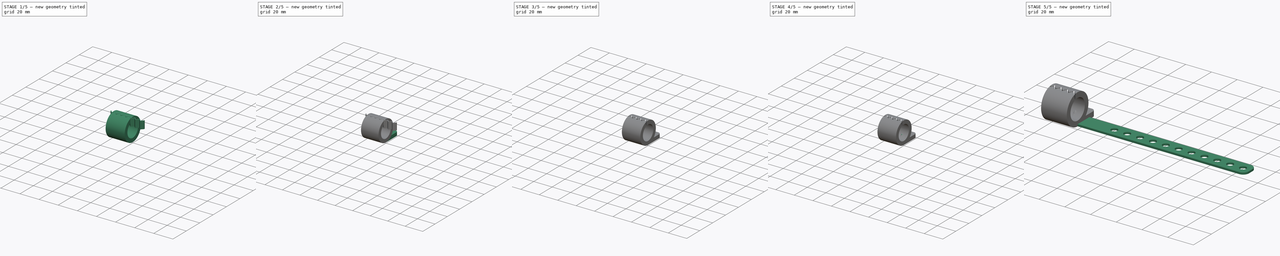
[diagram: build sequence overview — one tinted view per stage of 5, left to right]
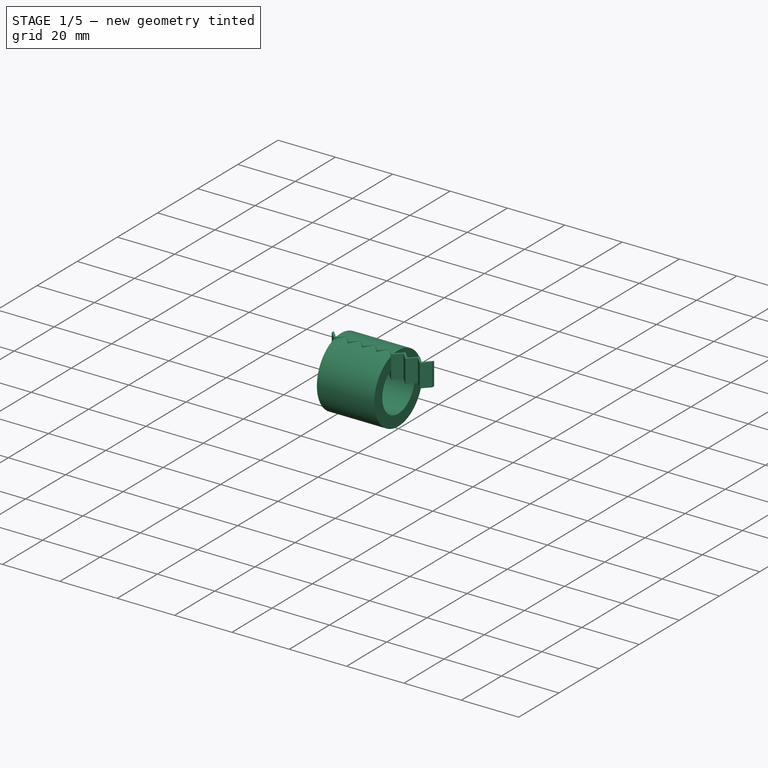
[diagram: stage 1 of 5 — iso view after this stage's code; geometry added in this stage tinted green]
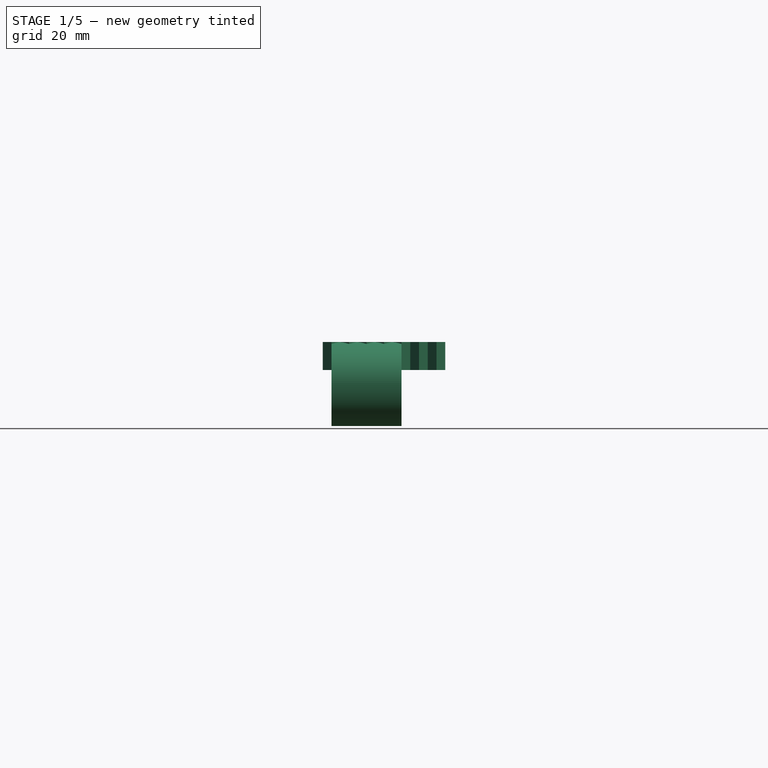
[diagram: stage 1 of 5 — front view after this stage's code; geometry added in this stage tinted green]
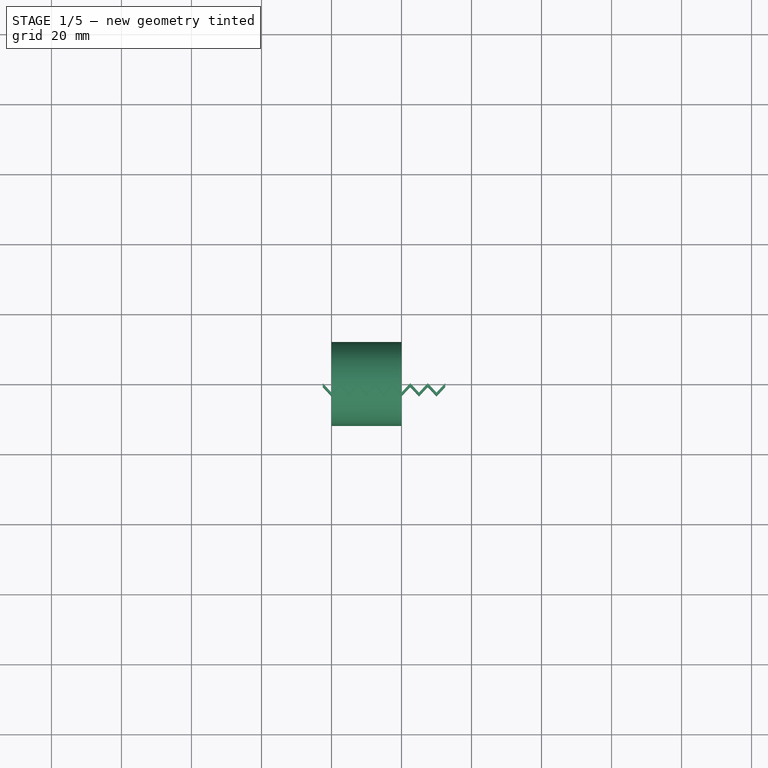
[diagram: stage 1 of 5 — top view after this stage's code; geometry added in this stage tinted green]
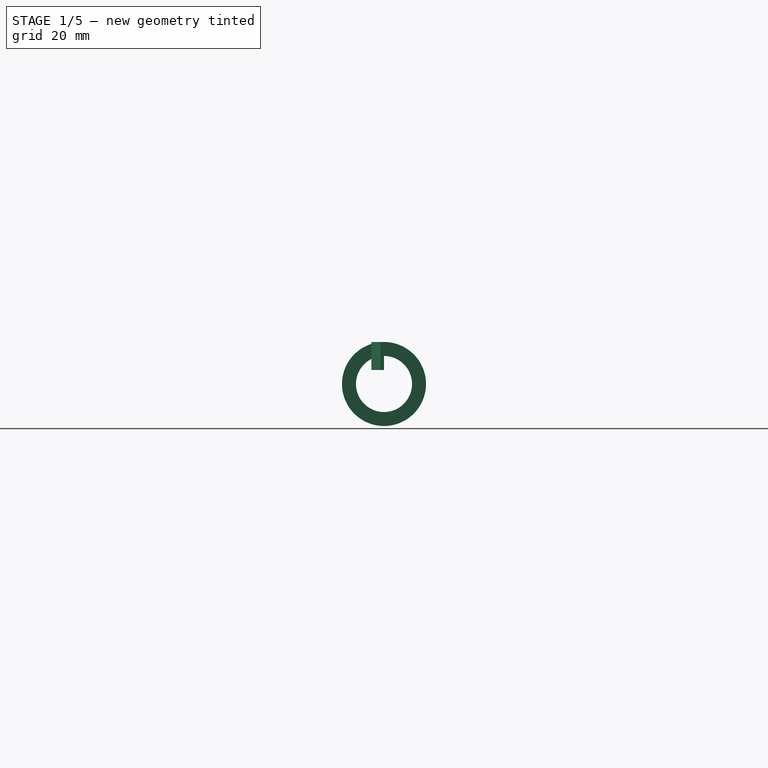
[diagram: stage 1 of 5 — right view after this stage's code; geometry added in this stage tinted green]
FCSTD DOCUMENT  (FreeCAD 0.21R33771 (Git))
Label: strap
License: FreeArt
LicenseURL: http://artlibre.org/licence/lal
objects: Part::FeaturePython×4, Part::Cylinder×3, Part::Cut×3, PartDesign::Body×3, App::Part×3, Part::MultiFuse×3, Part::Box×2, Part::Fillet×2, Sketcher::SketchObject×2, Part::Feature×1, Part::Revolution×1, PartDesign::FeatureBase×1, Spreadsheet::Sheet×1, PartDesign::Pad×1
note: 26 computed .brp shape members not serialized (recipe doc carries the construction recipe); baked Part::Feature solids carry a one-line shape summary decoded from their .brp

FEATURE [Part::Box] Box  label="bolt_attachment"
  AttacherType = Attacher::AttachEngine3D
  Height = 4
  Length = 20
  Width = 20
  expr: Height = <<p>>.attachment_height
  expr: Length = <<p>>.attachment_length
  expr: Width = <<p>>.attachment_width
FEATURE [App::Part] Part002  label="long wire strap part"
  Group = -> [Array,Cylinder003,Body001,Cut002,Fillet001,Box001,Array001,Fusion001]
  Origin = -> Origin003
FEATURE [Part::FeaturePython] Tube  label="tube001"  # WARN: FeaturePython — macro-defined, semantics opaque (R4)
  AttacherType = Attacher::AttachEngine3D
  Height = 20
  InnerRadius = 8
  OuterRadius = 12
  Placement = pos=(0,0,12) rot=(0,1,0;1.5708rad)
  expr: .Placement.Base.z = OuterRadius
  expr: Height = <<bolt_attachment>>.Length
  expr: InnerRadius = <<p>>.wire_hole_r
  expr: OuterRadius = <<p>>.wire_hole_r + <<p>>.attachment_height
FEATURE [Sketcher::SketchObject] Sketch001
  FullyConstrained = false
  MapMode = 5
  Support = -> [XY_Plane005]
  sketch-geometry (6):
    g0: LineSegment StartX=-2.5 StartY=0 StartZ=0 EndX=-6.644e-13 EndY=-2.614 EndZ=0
    g1: LineSegment StartX=-6.644e-13 StartY=-2.614 StartZ=0 EndX=2.5 EndY=0 EndZ=0
    g2: LineSegment StartX=-2.5 StartY=0 StartZ=0 EndX=-2.5 EndY=-1 EndZ=0
    g3: LineSegment StartX=-2.5 StartY=-1 StartZ=0 EndX=-6.644e-13 EndY=-3.614 EndZ=0
    g4: LineSegment StartX=-6.644e-13 StartY=-3.614 StartZ=0 EndX=2.5 EndY=-1 EndZ=0
    g5: LineSegment StartX=2.5 StartY=0 StartZ=0 EndX=2.5 EndY=-1 EndZ=0
  constraints (16):
    c: Coincident(g0,g1)
    c: PointOnObject(g1,g-1)
    c: Coincident(g0,g2)
    c: Coincident(g2,g3)
    c: Coincident(g3,g4)
    c: Parallel(g0,g3)
    c: Parallel(g1,g4)
    c: Distance(g3,g0) = 1
    c: DistanceX(g3,g0) = 0
    c: Equal(g0,g1)
    c: Coincident(g5,g1)
    c: Coincident(g5,g4)
    c: Symmetric(g1,g0,g-2)
    c: DistanceX(g0,g1) = 5
    c: Vertical(g2)
    c: Vertical(g5)
FEATURE [PartDesign::Pad] Pad
  Direction = (0,0,1)
  Length = 8
  Length2 = 100
  Midplane = true
  Profile = -> Sketch001
  Type = 0
  expr: Length = <<p>>.wire_hole_r
FEATURE [PartDesign::Body] Body002  label="gap cut body"
  Group = -> [Sketch001,Pad]
  Origin = -> Origin005
  Placement = pos=(0,2,20) rot=(0,0,1;0rad)
  Tip = -> Pad
  expr: .Placement.Base.z = <<p>>.wire_hole_r * 2 + <<p>>.attachment_height
FEATURE [Part::FeaturePython] Array002  label="Cut Pad Array"  # Draft array (typed FeaturePython)
  AlwaysSyncPlacement = false
  Angle = 360
  ArrayType = 0
  Axis = (0,0,1)
  Base = -> Pad
  Center = (0,0,0)
  Count = 7
  ExpandArray = false
  Fuse = false
  IntervalAxis = (0,0,0)
  IntervalX = (5,0,0)
  IntervalY = (0,100,0)
  IntervalZ = (0,0,100)
  NumberCircles = 3
  NumberPolar = 5
  NumberX = 7
  NumberY = 1
  NumberZ = 1
  Placement = pos=(0,0,20) rot=(0,0,1;0rad)
  PlacementList = 7 placements: arithmetic series from (0,0,0) step (5,0,0) to (30,0,0)
  RadialDistance = 50
  ScaleList = (7) [(1,1,1),(1,1,1),(1,1,1),(1,1,1),(1,1,1),(1,1,1),(1,1,1)]
  Symmetry = 1
  TangentialDistance = 25
  expr: .Placement.Base.z = <<p>>.wire_hole_r * 2 + <<p>>.attachment_height
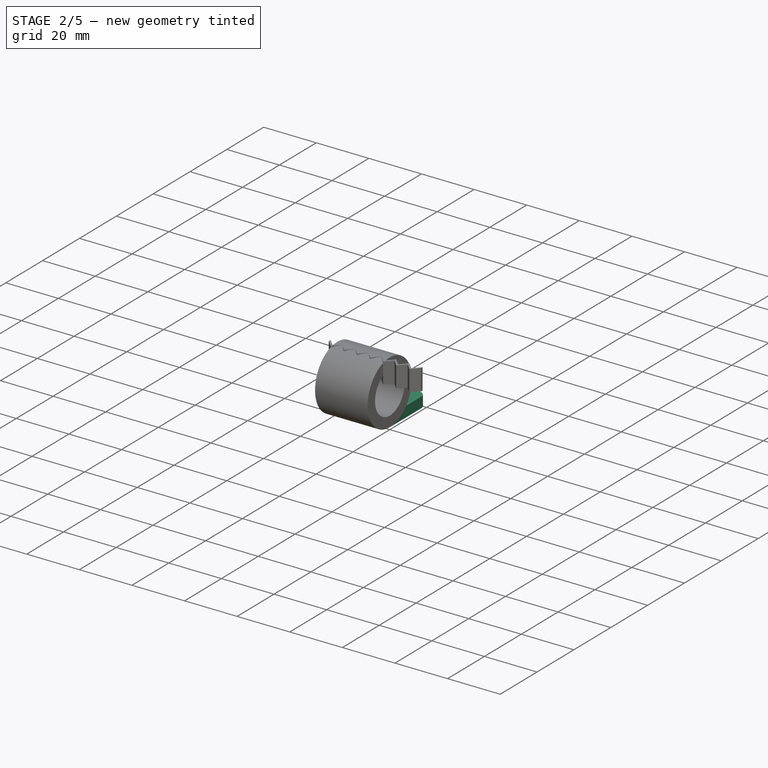
[diagram: stage 2 of 5 — iso view after this stage's code; geometry added in this stage tinted green]
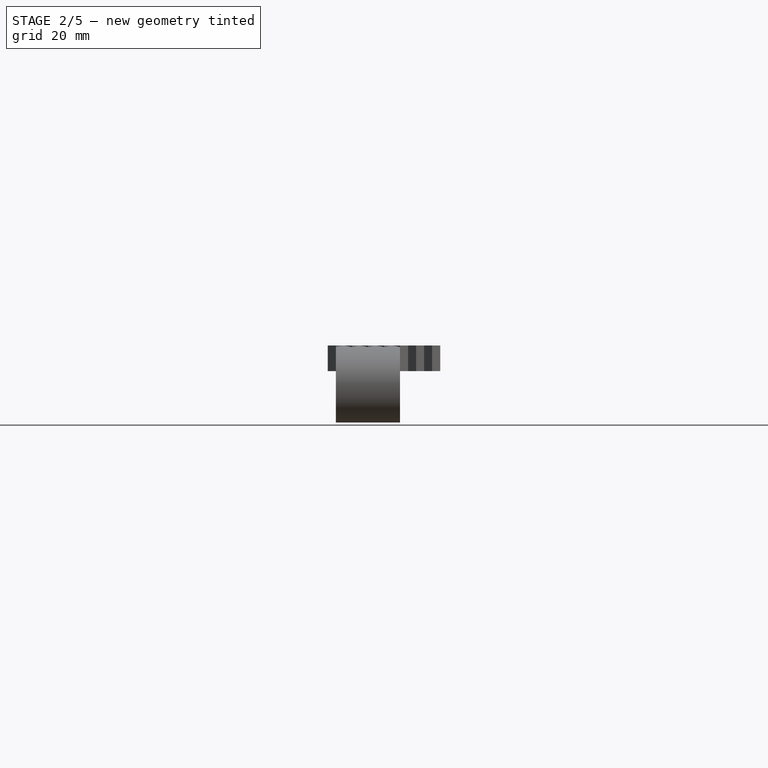
[diagram: stage 2 of 5 — front view after this stage's code; geometry added in this stage tinted green]
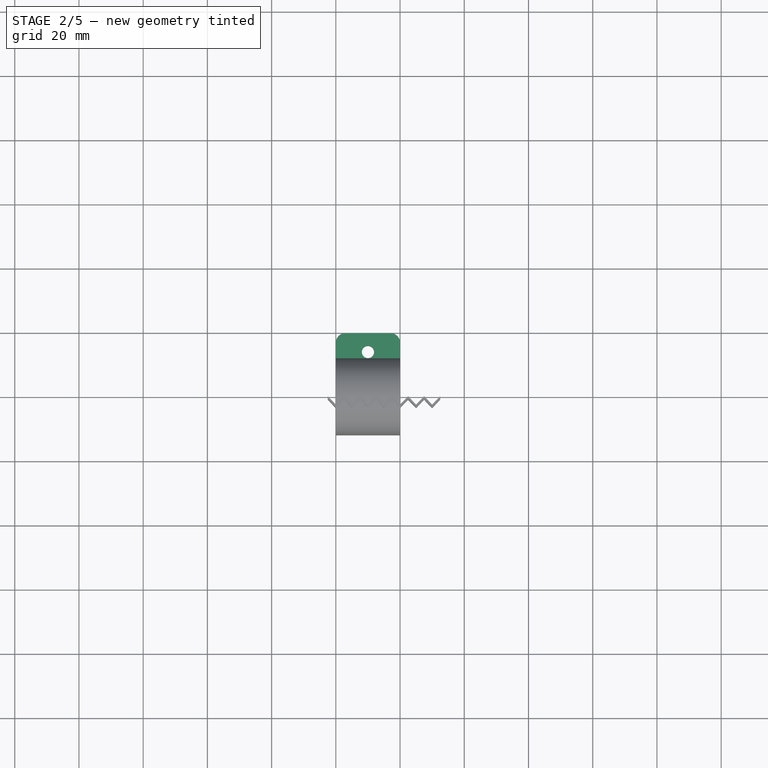
[diagram: stage 2 of 5 — top view after this stage's code; geometry added in this stage tinted green]
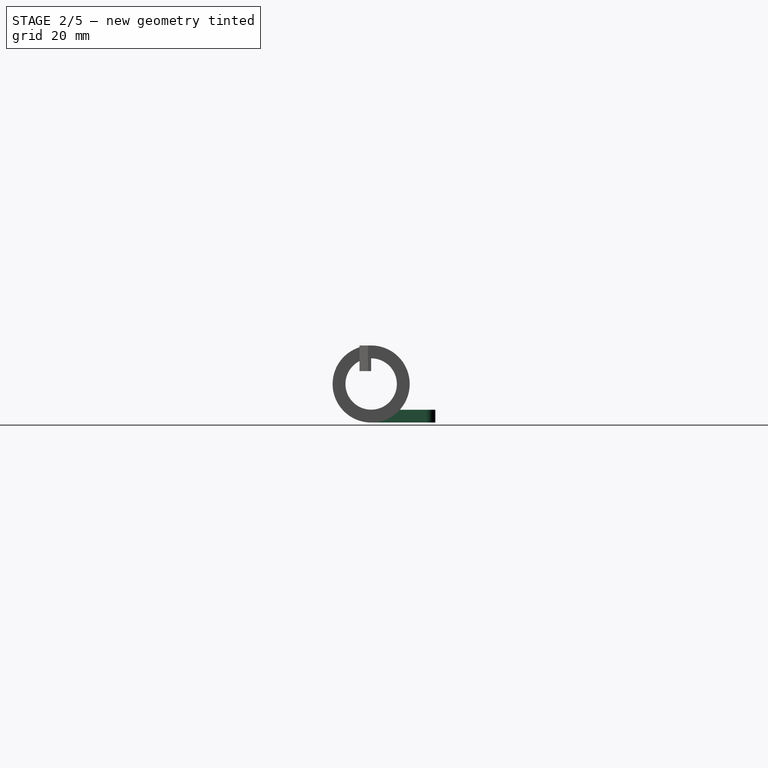
[diagram: stage 2 of 5 — right view after this stage's code; geometry added in this stage tinted green]
FEATURE [Part::Cylinder] Cylinder  label="bolt_hole"
  Angle = 360
  AttacherType = Attacher::AttachEngine3D
  FirstAngle = 0
  Height = 10
  Placement = pos=(10,14.1,0) rot=(0,0,1;0rad)
  Radius = 1.9
  SecondAngle = 0
  expr: .Placement.Base.x = <<bolt_attachment>>.Length / 2
  expr: .Placement.Base.y = <<bolt_attachment>>.Width - Radius - 4 mm
  expr: Radius = <<p>>.bolt_hole_r
FEATURE [Part::Fillet] Fillet  label="bolt attachment fillet"
  Base = -> Box
  Edges = 2 edges r=3: [Edge3,Edge7]
FEATURE [Part::Cut] Cut  label="attachment"
  Base = -> Fillet
  Tool = -> Cylinder
FEATURE [Part::MultiFuse] Fusion  label="bolt wire cilinder"
  Shapes = -> [Cut,Tube]
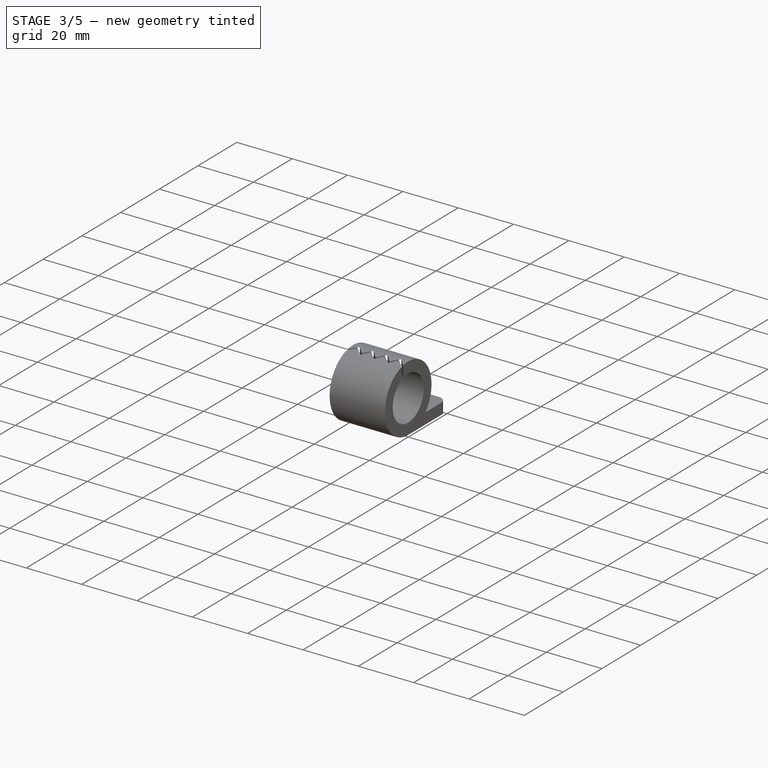
[diagram: stage 3 of 5 — iso view after this stage's code; geometry added in this stage tinted green]
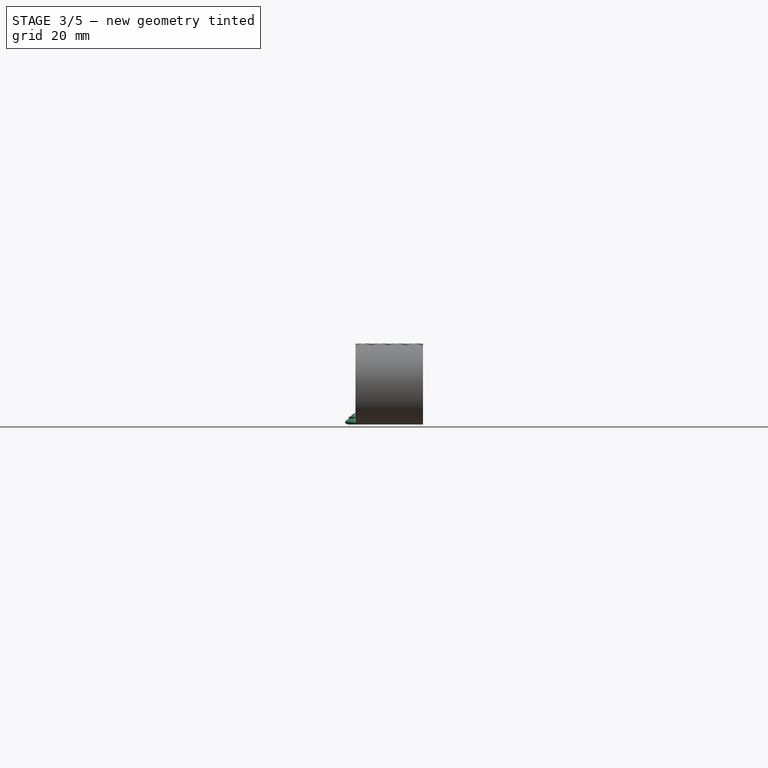
[diagram: stage 3 of 5 — front view after this stage's code; geometry added in this stage tinted green]
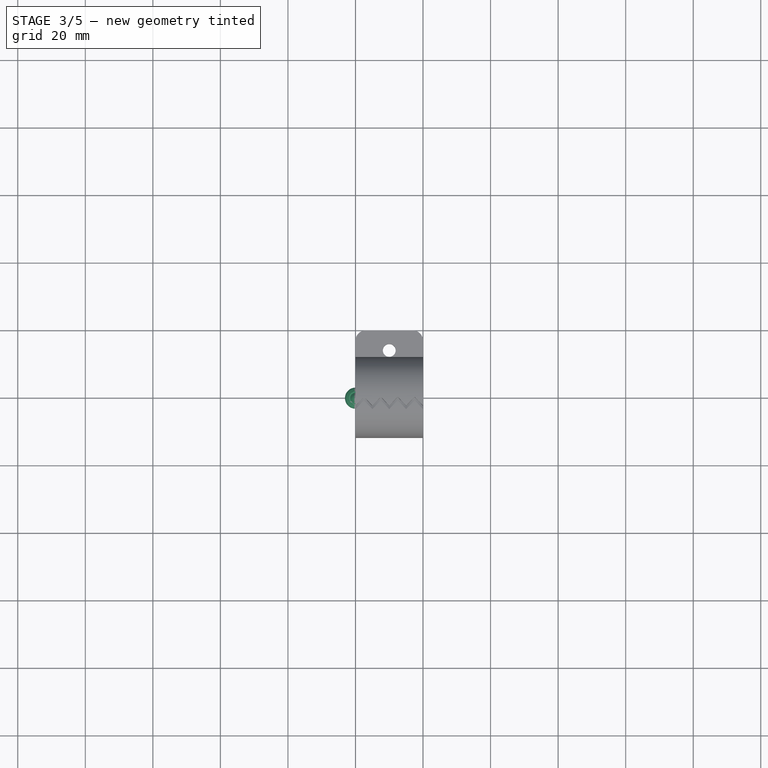
[diagram: stage 3 of 5 — top view after this stage's code; geometry added in this stage tinted green]
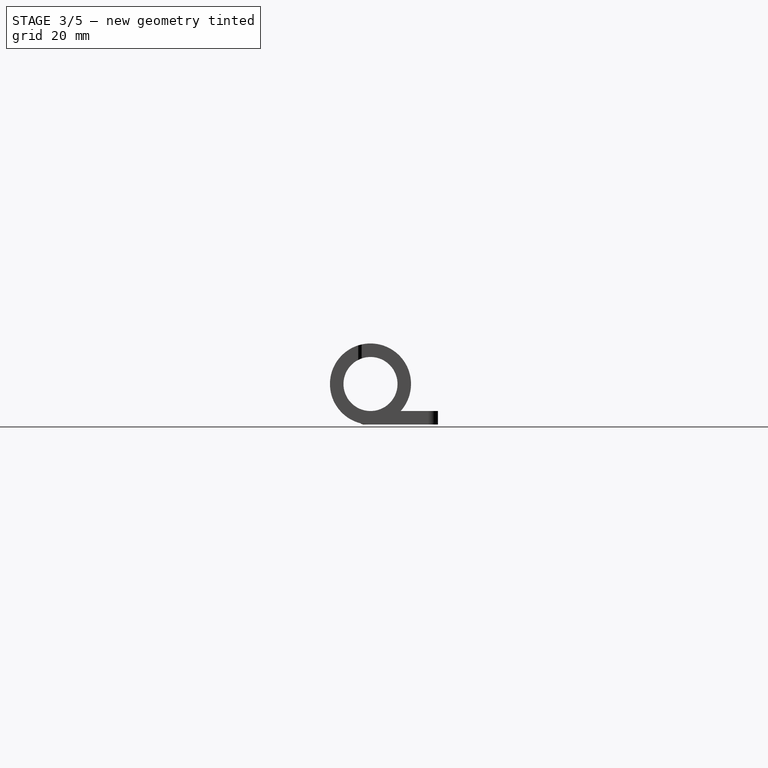
[diagram: stage 3 of 5 — right view after this stage's code; geometry added in this stage tinted green]
FEATURE [PartDesign::Body] Body  label="button body"
  Origin = -> Origin001
FEATURE [Sketcher::SketchObject] Sketch
  FullyConstrained = false
  MapMode = 5
  Placement = pos=(0,0,0) rot=(1,0,0;1.5708rad)
  Support = -> [XZ_Plane001]
  sketch-geometry (20):
    g0: LineSegment StartX=-2.2 StartY=0 StartZ=0 EndX=0 EndY=0 EndZ=0
    g1: LineSegment StartX=0 StartY=0 StartZ=0 EndX=0 EndY=3.51345 EndZ=0
    g2-g6: Circle x5 (B-spline internal-alignment scaffolding for g7; pole/knot coordinates omitted)
    g7: BSplineCurve PolesCount=5 KnotsCount=3 Degree=3 IsPeriodic=0
    g8: GeomPoint X=0 Y=3.51345 Z=0
    g9: GeomPoint X=-1.06907 Y=2.83212 Z=0
    g10: GeomPoint X=-2.06953 Y=1.67445 Z=0
    g11-g15: Circle x5 (B-spline internal-alignment scaffolding for g16; pole/knot coordinates omitted)
    g16: BSplineCurve PolesCount=5 KnotsCount=3 Degree=3 IsPeriodic=0
    g17: GeomPoint X=-2.06953 Y=1.67445 Z=0
    g18: GeomPoint X=-3.07188 Y=0.787181 Z=0
    g19: GeomPoint X=-2.2 Y=0 Z=0
  constraints (18):
    c: Coincident(g1,g0)
    c: Vertical(g1)
    c: Coincident(g1,g-1)
    c: Weight(g2) = 1
    c: Equal(g2, g3-g6) x4
    c: InternalAlignment(g2-g6 -> g7) x5
    c: InternalAlignment(g8,g7)
    c: InternalAlignment(g9,g7)
    c: InternalAlignment(g10,g7)
    c: Coincident(g1,g7)
    c: Coincident(g16,g7)
    c: Weight(g11) = 1
    c: Equal(g11, g12-g15) x4
    c: InternalAlignment(g11-g15 -> g16) x5
    c: InternalAlignment(g17,g16)
    c: InternalAlignment(g18,g16)
    c: InternalAlignment(g19,g16)
    c: Coincident(g19,g0)
FEATURE [Part::Feature] hole_strap001
  shape: bbox 198 x 12 x 4.5 mm, 7638 faces, 0 solids (baked)
FEATURE [Part::Revolution] Revolve  label="button revolve"
  Angle = 360
  Axis = (0,0,1)
  Base = (0,0,0)
  FaceMakerClass = Part::FaceMakerBullseye
  Solid = true
  Source = -> Sketch
  Symmetric = false
FEATURE [PartDesign::FeatureBase] Clone
  BaseFeature = -> Revolve
FEATURE [Spreadsheet::Sheet] Spreadsheet  label="p"
  cells = A1='strap_length; B1(strap_length)=150; A2='strap_width; B2(strap_width)=13; A3='strap_height; B3(strap_height)=1.5; A4='button_dist; B4(button_dist)=10; A5='button_hole_r; B5(button_hole_r)=2.5; A7='wire_hole_r; B7(wire_hole_r)=8; A8='attachment_length; B8(attachment_length)=20; A9='attachment_width; B9(attachment_width)=20; A10='attachment_height; B10(attachment_height)=4; A11='bolt_hole_r; B11(bolt_hole_r)=1.9
FEATURE [Part::Cylinder] Cylinder004  label="Cylinder"
  Angle = 360
  AttacherType = Attacher::AttachEngine3D
  FirstAngle = 0
  Height = 2.3
  Radius = 2
  SecondAngle = 0
  expr: Height = <<p>>.strap_height + 0.8
FEATURE [Part::Cut] Cut003  label="bolt wire cylinder cut"
  Base = -> Fusion
  Tool = -> Array002
FEATURE [App::Part] Part001  label="bolt wire cylinder part"
  Group = -> [Cut003]
  Origin = -> Origin002
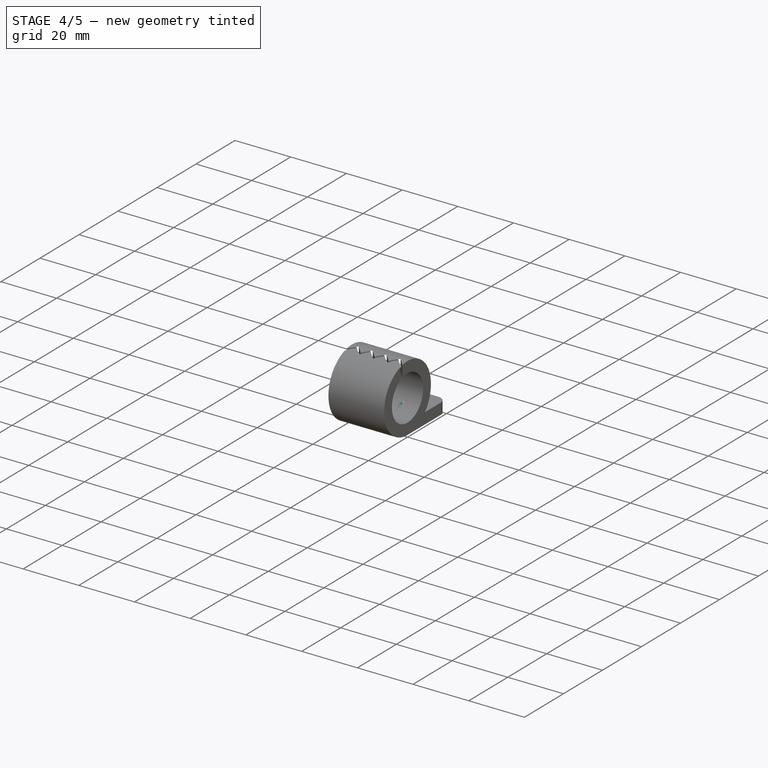
[diagram: stage 4 of 5 — iso view after this stage's code; geometry added in this stage tinted green]
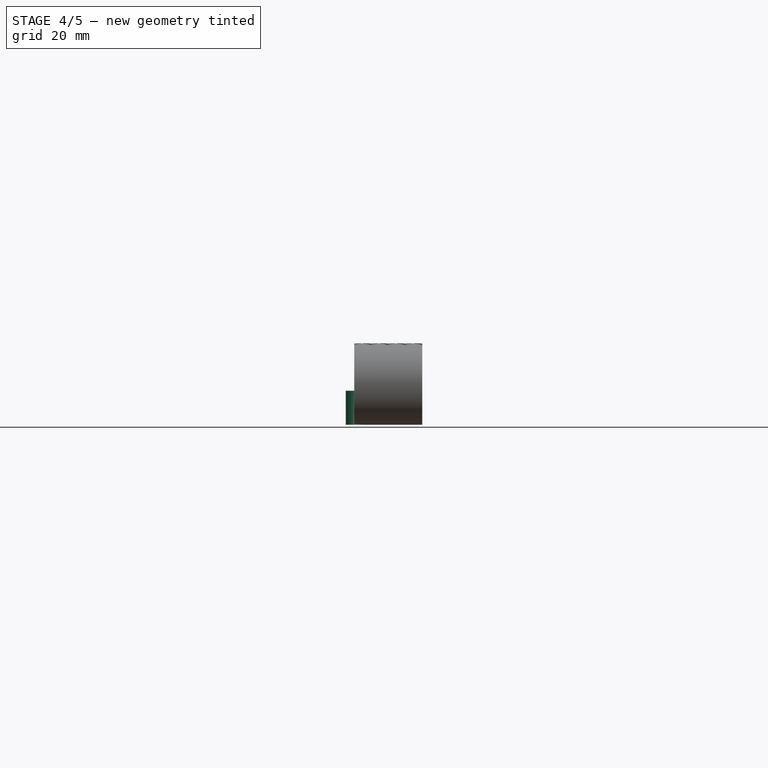
[diagram: stage 4 of 5 — front view after this stage's code; geometry added in this stage tinted green]
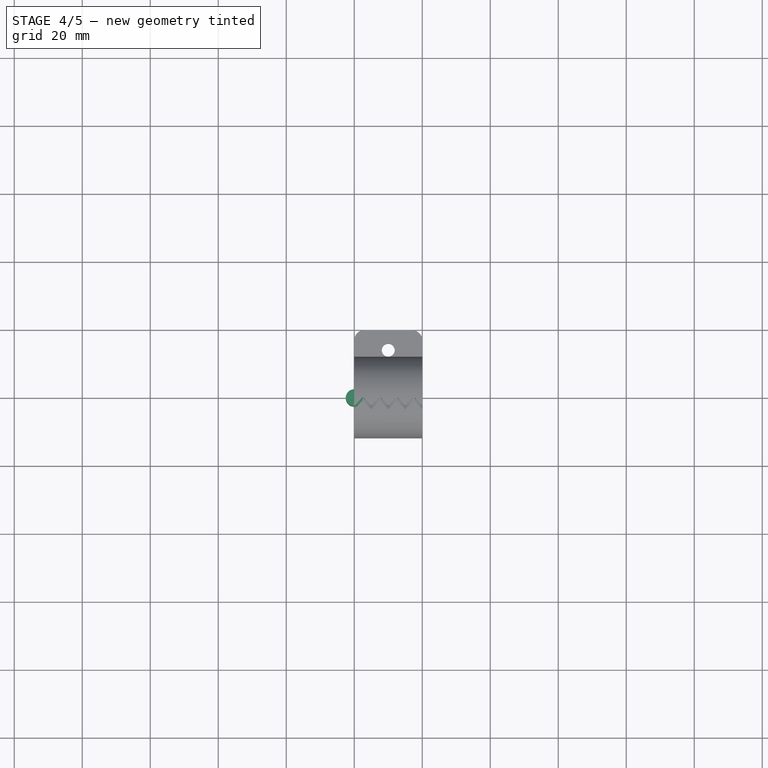
[diagram: stage 4 of 5 — top view after this stage's code; geometry added in this stage tinted green]
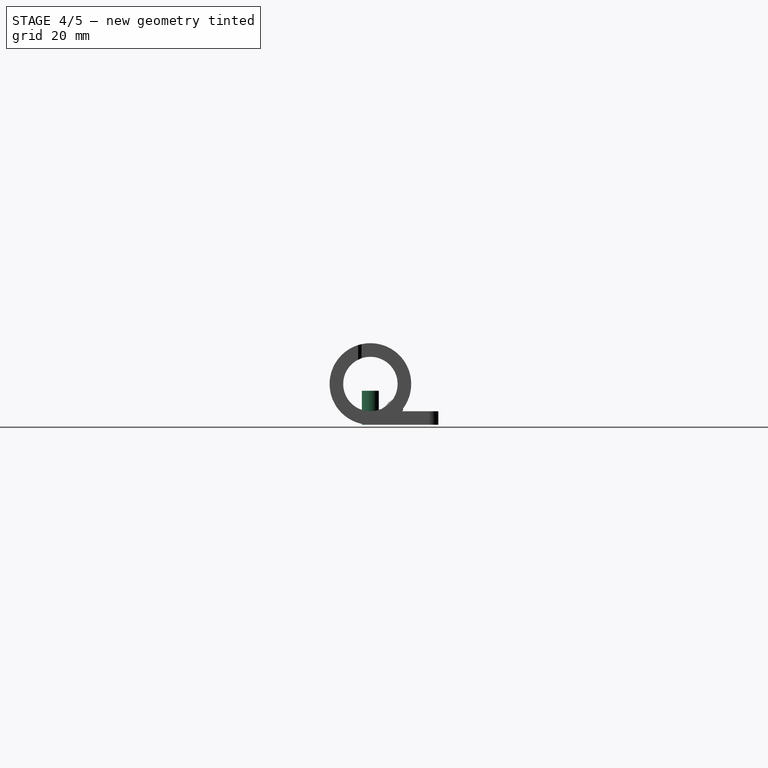
[diagram: stage 4 of 5 — right view after this stage's code; geometry added in this stage tinted green]
FEATURE [App::Part] Part  label="button part"
  Group = -> [Body,Sketch,Revolve]
  Origin = -> Origin
FEATURE [Part::Box] Box001  label="long_cube"
  AttacherType = Attacher::AttachEngine3D
  Height = 1.5
  Length = 150
  Width = 13
  expr: Height = <<p>>.strap_height
  expr: Length = <<p>>.strap_length
  expr: Width = <<p>>.strap_width
FEATURE [Part::Cylinder] Cylinder003  label="button hole"
  Angle = 360
  AttacherType = Attacher::AttachEngine3D
  FirstAngle = 0
  Height = 10
  Radius = 2.5
  SecondAngle = 0
  expr: Radius = <<p>>.button_hole_r
FEATURE [Part::MultiFuse] Fusion002  label="button fusion"
  Shapes = -> [Cylinder004,Body001]
FEATURE [Part::FeaturePython] Array  label="button_array"  # Draft array (typed FeaturePython)
  Angle = 360
  ArrayType = 0
  Axis = (0,0,1)
  Base = -> Fusion002
  Center = (0,0,0)
  Count = 2
  Fuse = false
  IntervalAxis = (0,0,0)
  IntervalX = (10,0,0)
  IntervalY = (0,1,0)
  IntervalZ = (0,0,1)
  NumberPolar = 1
  NumberX = 2
  NumberY = 1
  NumberZ = 1
  Placement = pos=(4,6.5,1.5) rot=(0,0,1;0rad)
  expr: .IntervalX.x = <<p>>.button_dist
  expr: .Placement.Base.y = <<long_cube>>.Width / 2
  expr: .Placement.Base.z = <<long_cube>>.Height
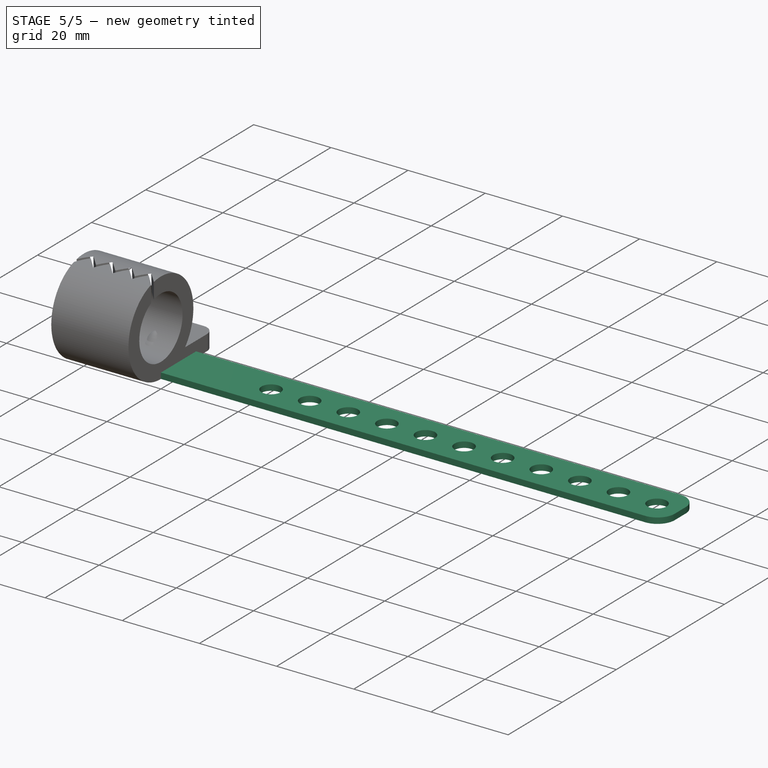
[diagram: stage 5 of 5 — iso view after this stage's code; geometry added in this stage tinted green]
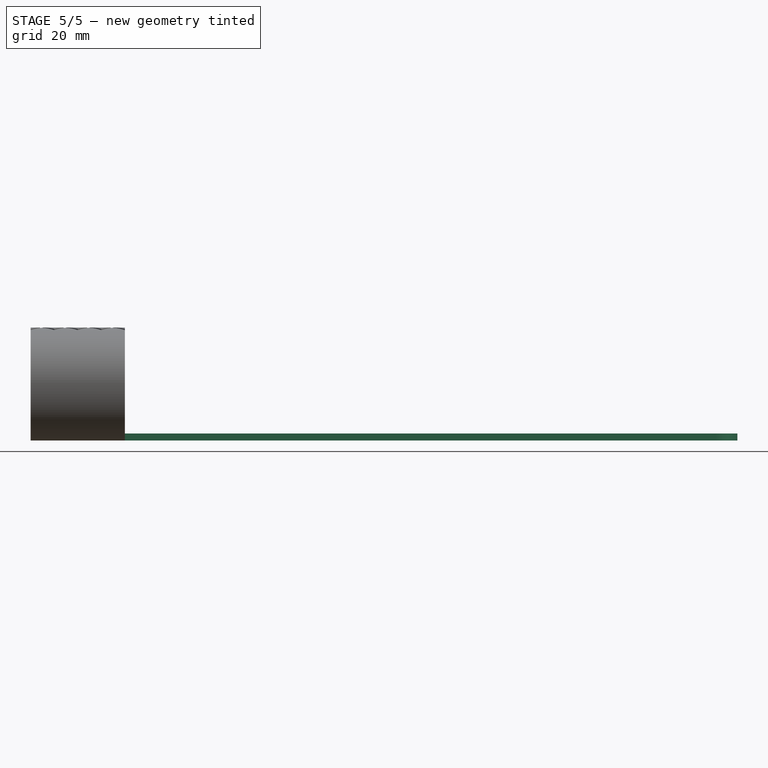
[diagram: stage 5 of 5 — front view after this stage's code; geometry added in this stage tinted green]
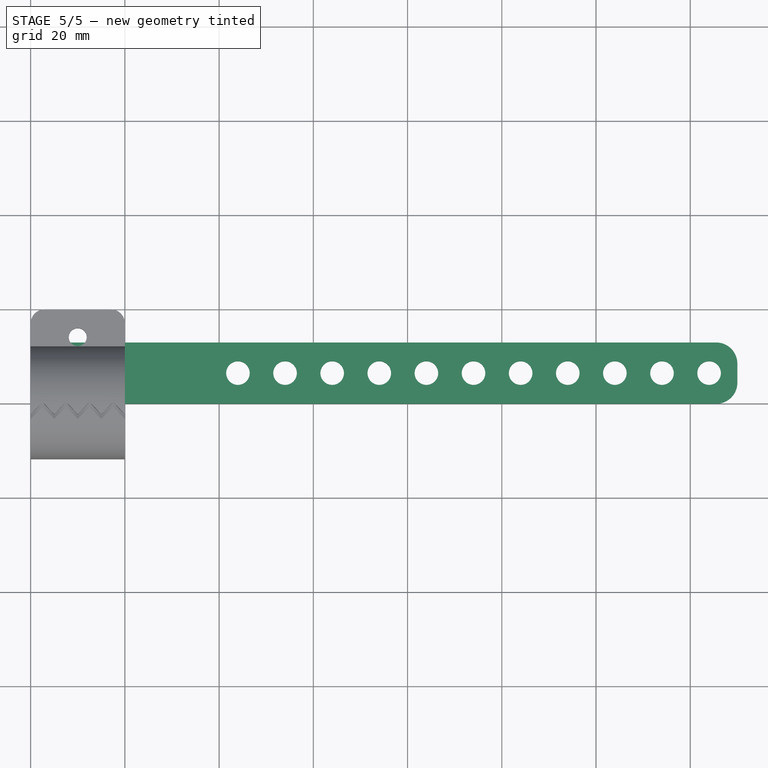
[diagram: stage 5 of 5 — top view after this stage's code; geometry added in this stage tinted green]
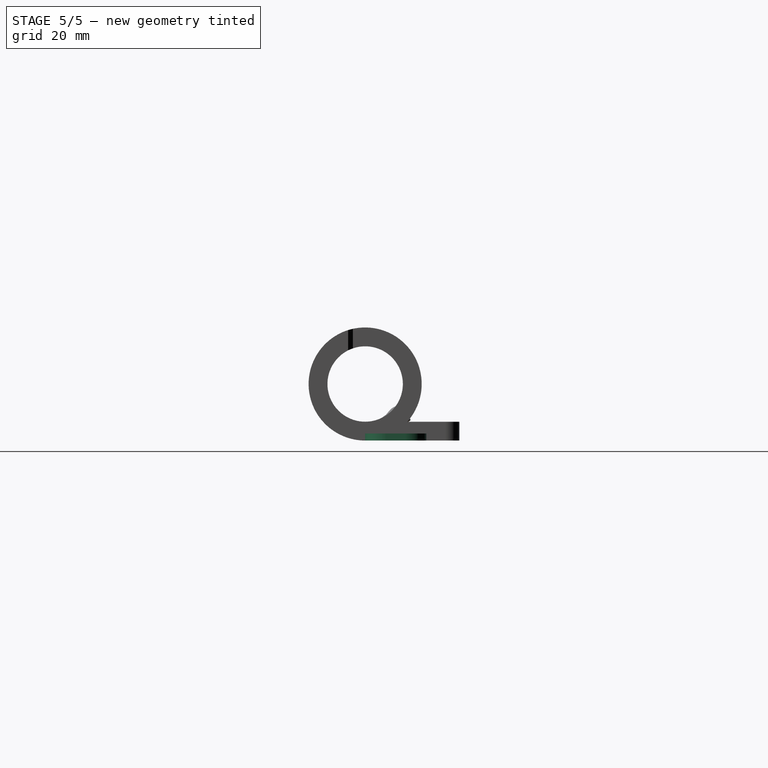
[diagram: stage 5 of 5 — right view after this stage's code; geometry added in this stage tinted green]
FEATURE [PartDesign::Body] Body001  label="button clone"
  BaseFeature = -> Revolve
  Group = -> [Clone]
  Origin = -> Origin004
  Placement = pos=(0,0,2.3) rot=(0,0,1;0rad)
  Tip = -> Clone
  expr: .Placement.Base.z = <<p>>.strap_height + 0.8
FEATURE [Part::Fillet] Fillet001  label="long cube fillet"
  Base = -> Box001
  Edges = 4 edges r=4.5: [Edge1,Edge3,Edge5,Edge7]
FEATURE [Part::FeaturePython] Array001  label="button hole array"  # Draft array (typed FeaturePython)
  Angle = 360
  ArrayType = 0
  Axis = (0,0,1)
  Base = -> Cylinder003
  Center = (0,0,0)
  Count = 11
  Fuse = false
  IntervalAxis = (0,0,0)
  IntervalX = (10,0,0)
  IntervalY = (0,1,0)
  IntervalZ = (0,0,1)
  NumberPolar = 1
  NumberX = 11
  NumberY = 1
  NumberZ = 1
  Placement = pos=(44,6.5,0) rot=(0,0,1;0rad)
  expr: .IntervalX.x = <<button_array>>.IntervalX.x
  expr: .Placement.Base.x = <<button_array>>.Placement.Base.x + <<button_array>>.IntervalX.x * (<<button_array>>.NumberX + 2)
  expr: .Placement.Base.y = <<button_array>>.Placement.Base.y
  expr: NumberX = <<long_cube>>.Length / <<button_array>>.IntervalX.x - <<button_array>>.NumberX - 2
FEATURE [Part::Cut] Cut002  label="strap cut"
  Base = -> Fillet001
  Tool = -> Array001
FEATURE [Part::MultiFuse] Fusion001  label="strap union"
  Shapes = -> [Cut002,Array]
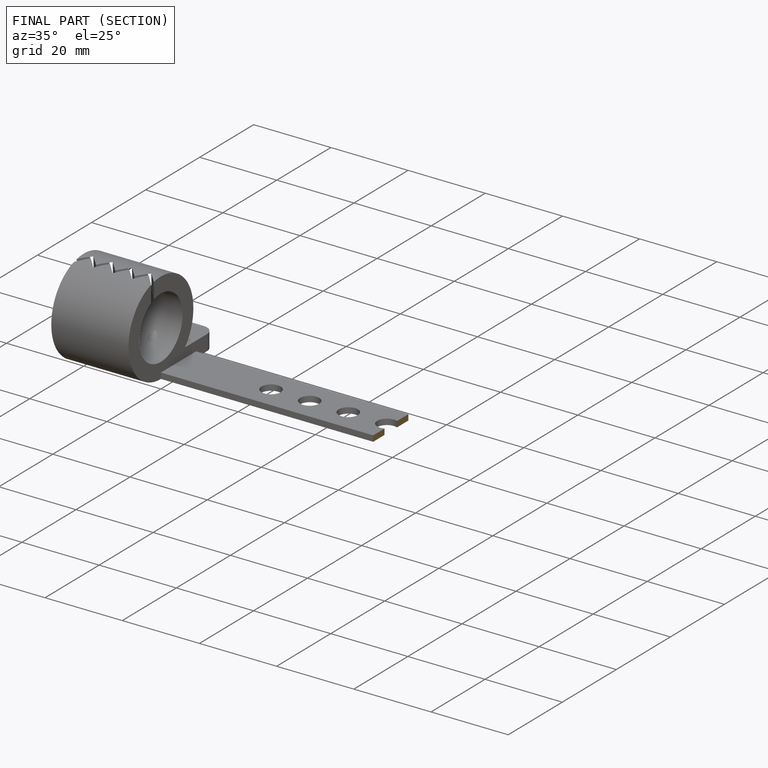
[diagram: finished part — half-section view (interior)]
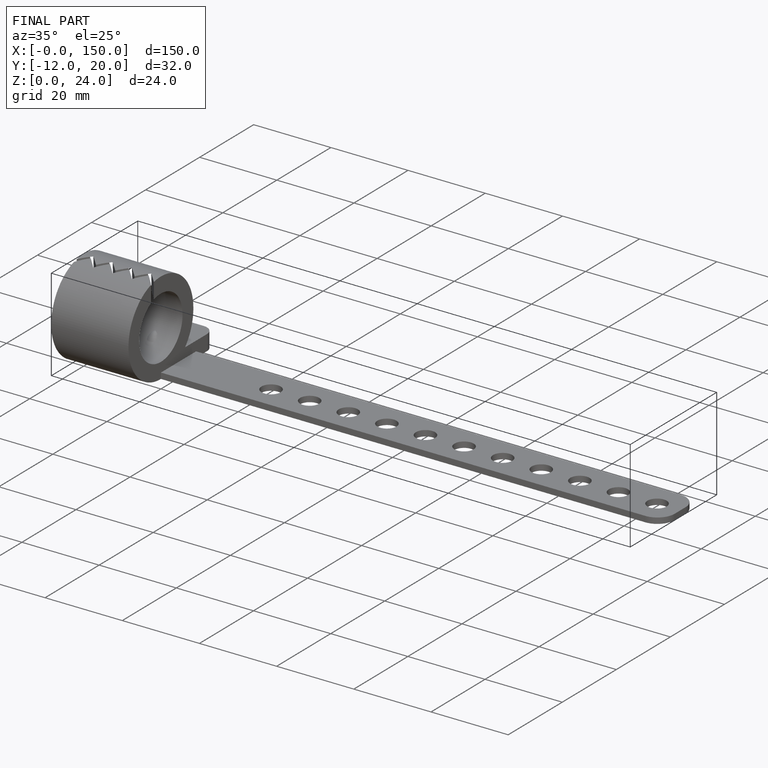
[diagram: finished part — iso view with bounding-box wireframe]
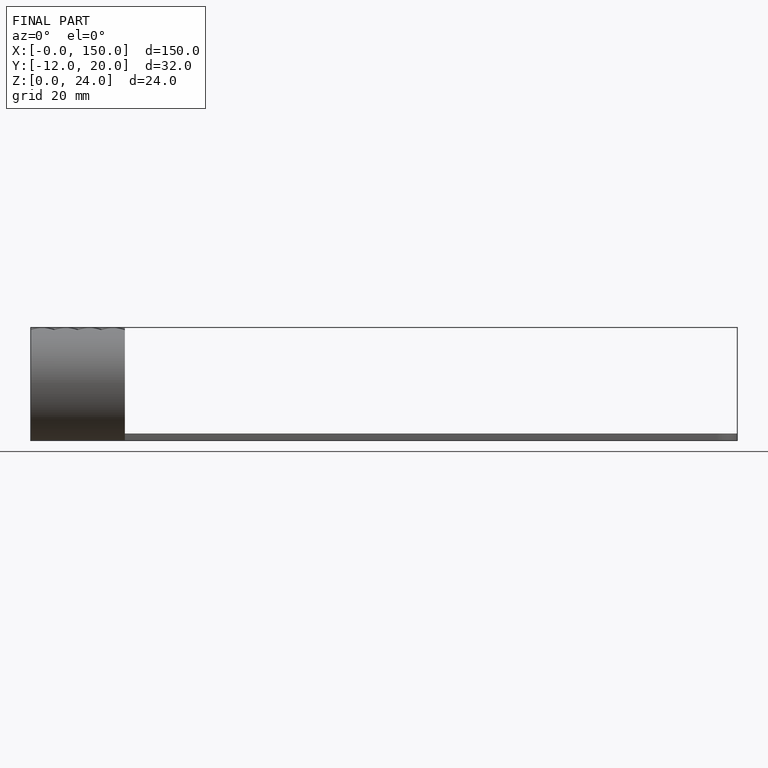
[diagram: finished part — front view with bounding-box wireframe]
